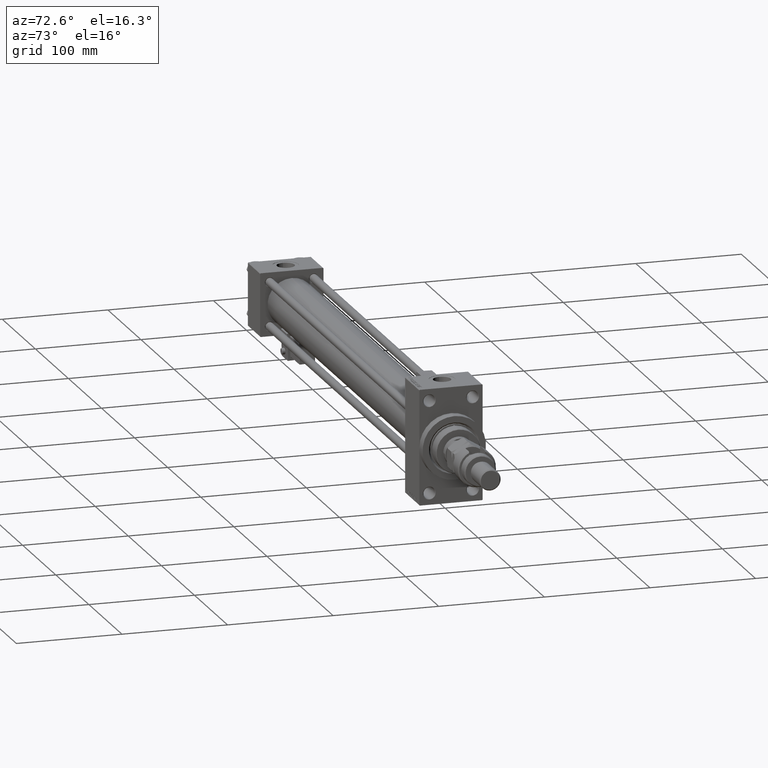
[diagram: clean part render]
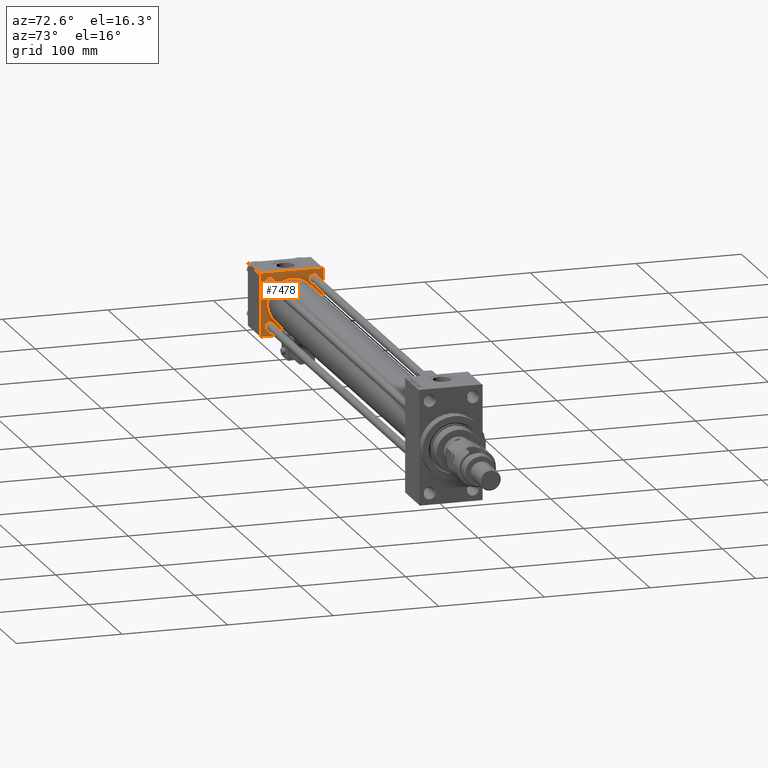
[diagram: same view with one face highlighted and labeled with its STEP entity id]
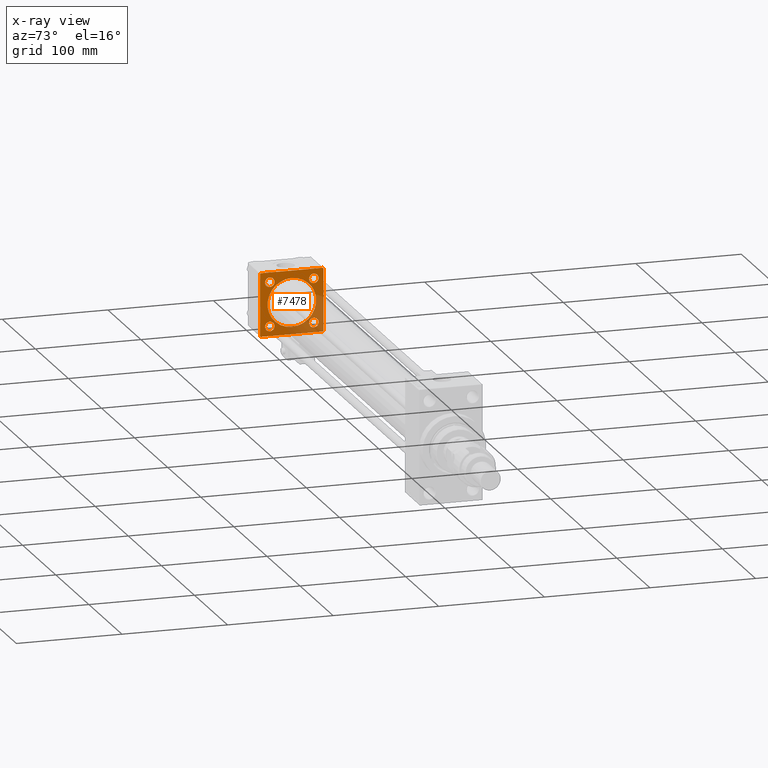
[diagram: x-ray of the same camera — body ghosted, the highlighted face saturated]
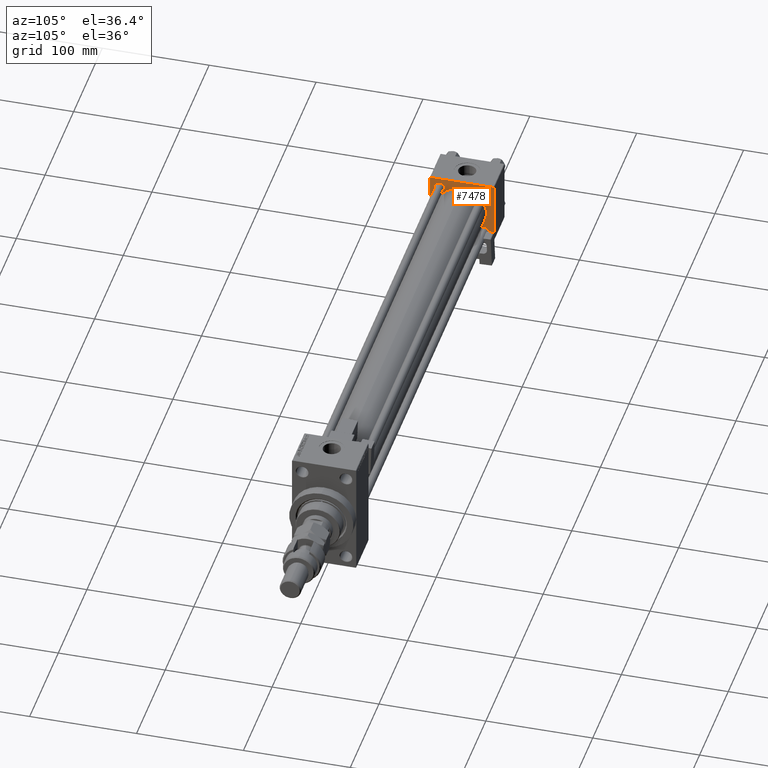
[diagram: same view with one face highlighted and labeled with its STEP entity id]
A machine part, auxiliary view. The second image highlights one B-rep face of the part: STEP entity #7478.
The next image is the same camera in x-ray: the body ghosted, the highlighted face saturated — about 28% of this face is hidden behind the body in this view.
A second angle (auxiliary view) of the same face is appended — the face is thin or edge-on in the first view.
In plain terms, the highlighted planar face has unit normal (-1, 0, 0).
Its self-contained STEP definition (entity closure, byte-faithful):
#147 = DIRECTION ( 'NONE',  ( 0.000000000000000000, 0.000000000000000000, 1.000000000000000000 ) ) ;
#328 = FACE_BOUND ( 'NONE', #32822, .T. ) ;
#1143 = DIRECTION ( 'NONE',  ( -0.000000000000000000, 0.7071067811865574537, 0.7071067811865376918 ) ) ;
#1205 = LINE ( 'NONE', #18168, #2348 ) ;
#1561 = DIRECTION ( 'NONE',  ( 0.000000000000000000, 0.000000000000000000, 1.000000000000000000 ) ) ;
#2068 = AXIS2_PLACEMENT_3D ( 'NONE', #47729, #39461, #10238 ) ;
#2106 = CIRCLE ( 'NONE', #10565, 4.500000000000059508 ) ;
#2284 = AXIS2_PLACEMENT_3D ( 'NONE', #28214, #48978, #7501 ) ;
#2348 = VECTOR ( 'NONE', #5705, 1000.000000000000114 ) ;
#2977 = VERTEX_POINT ( 'NONE', #24950 ) ;
#3003 = ORIENTED_EDGE ( 'NONE', *, *, #9560, .T. ) ;
#3104 = CARTESIAN_POINT ( 'NONE',  ( 37.00000000000000000, -30.00000000000000000, 29.99999999999999289 ) ) ;
#3221 = EDGE_CURVE ( 'NONE', #44243, #23962, #45374, .T. ) ;
#3229 = LINE ( 'NONE', #6669, #33882 ) ;
#3836 = VERTEX_POINT ( 'NONE', #33573 ) ;
#3862 = VERTEX_POINT ( 'NONE', #45813 ) ;
#4060 = PLANE ( 'NONE',  #2284 ) ;
#4586 = DIRECTION ( 'NONE',  ( 0.000000000000000000, 0.000000000000000000, 1.000000000000000000 ) ) ;
#4587 = DIRECTION ( 'NONE',  ( 0.000000000000000000, 0.000000000000000000, 1.000000000000000000 ) ) ;
#4992 = EDGE_CURVE ( 'NONE', #5384, #3862, #50861, .T. ) ;
#5384 = VERTEX_POINT ( 'NONE', #13252 ) ;
#5705 = DIRECTION ( 'NONE',  ( -0.000000000000000000, -0.7071067811865474617, -0.7071067811865474617 ) ) ;
#6182 = CARTESIAN_POINT ( 'NONE',  ( 37.00000000000000000, -20.84999999999999076, 20.85000000000000497 ) ) ;
#6669 = CARTESIAN_POINT ( 'NONE',  ( 37.00000000000000000, 29.49999999999999289, 30.00000000000000000 ) ) ;
#6893 = EDGE_CURVE ( 'NONE', #13097, #14753, #50620, .T. ) ;
#7071 = ORIENTED_EDGE ( 'NONE', *, *, #51605, .T. ) ;
#7478 = ADVANCED_FACE ( 'NONE', ( #36699, #48704, #32718, #328, #8290, #8543 ), #4060, .F. ) ;
#7501 = DIRECTION ( 'NONE',  ( -0.000000000000000000, 0.000000000000000000, 1.000000000000000000 ) ) ;
#8027 = EDGE_LOOP ( 'NONE', ( #25717, #12095, #42353, #32781, #21852, #11783, #12171, #15254 ) ) ;
#8128 = EDGE_LOOP ( 'NONE', ( #34452, #41280 ) ) ;
#8290 = FACE_BOUND ( 'NONE', #8128, .T. ) ;
#8543 = FACE_OUTER_BOUND ( 'NONE', #8027, .T. ) ;
#8678 = VERTEX_POINT ( 'NONE', #28031 ) ;
#9424 = EDGE_CURVE ( 'NONE', #31983, #9885, #18539, .T. ) ;
#9560 = EDGE_CURVE ( 'NONE', #15120, #3836, #44664, .T. ) ;
#9660 = CARTESIAN_POINT ( 'NONE',  ( 36.99999999999997868, -2.602085213965210642E-15, 0.000000000000000000 ) ) ;
#9885 = VERTEX_POINT ( 'NONE', #42797 ) ;
#10169 = VECTOR ( 'NONE', #1143, 999.9999999999998863 ) ;
#10238 = DIRECTION ( 'NONE',  ( 0.000000000000000000, 0.000000000000000000, 1.000000000000000000 ) ) ;
#10565 = AXIS2_PLACEMENT_3D ( 'NONE', #48446, #44171, #4586 ) ;
#10638 = DIRECTION ( 'NONE',  ( -1.000000000000000000, 0.000000000000000000, -0.000000000000000000 ) ) ;
#11082 = DIRECTION ( 'NONE',  ( 0.000000000000000000, 0.7071067811865474617, -0.7071067811865474617 ) ) ;
#11746 = ORIENTED_EDGE ( 'NONE', *, *, #47719, .T. ) ;
#11783 = ORIENTED_EDGE ( 'NONE', *, *, #27908, .T. ) ;
#12095 = ORIENTED_EDGE ( 'NONE', *, *, #39964, .T. ) ;
#12171 = ORIENTED_EDGE ( 'NONE', *, *, #31834, .T. ) ;
#12566 = VECTOR ( 'NONE', #51746, 1000.000000000000000 ) ;
#13097 = VERTEX_POINT ( 'NONE', #43615 ) ;
#13252 = CARTESIAN_POINT ( 'NONE',  ( 37.00000000000000000, 29.49999999999999289, 30.00000000000000000 ) ) ;
#13264 = AXIS2_PLACEMENT_3D ( 'NONE', #29915, #21690, #13451 ) ;
#13451 = DIRECTION ( 'NONE',  ( 0.000000000000000000, 0.000000000000000000, 1.000000000000000000 ) ) ;
#14368 = VECTOR ( 'NONE', #23671, 1000.000000000000000 ) ;
#14753 = VERTEX_POINT ( 'NONE', #32143 ) ;
#14786 = CARTESIAN_POINT ( 'NONE',  ( 37.00000000000000000, -20.84999999999999076, -20.85000000000000497 ) ) ;
#14941 = DIRECTION ( 'NONE',  ( 0.000000000000000000, -1.000000000000000000, -1.156482317317871725E-16 ) ) ;
#15120 = VERTEX_POINT ( 'NONE', #24641 ) ;
#15254 = ORIENTED_EDGE ( 'NONE', *, *, #9424, .T. ) ;
#15693 = ORIENTED_EDGE ( 'NONE', *, *, #35494, .T. ) ;
#16333 = EDGE_CURVE ( 'NONE', #14753, #13097, #19835, .T. ) ;
#18081 = CARTESIAN_POINT ( 'NONE',  ( 37.00000000000000000, -20.84999999999999076, -16.34999999999994458 ) ) ;
#18168 = CARTESIAN_POINT ( 'NONE',  ( 37.00000000000000000, -30.00000000000000000, 29.49999999999999289 ) ) ;
#18539 = LINE ( 'NONE', #38993, #48936 ) ;
#18873 = CARTESIAN_POINT ( 'NONE',  ( 37.00000000000000000, 29.99999999999999289, -30.00000000000000000 ) ) ;
#19412 = DIRECTION ( 'NONE',  ( 0.000000000000000000, -0.7071067811865474617, 0.7071067811865474617 ) ) ;
#19835 = CIRCLE ( 'NONE', #34269, 23.00000000000000000 ) ;
#19894 = VERTEX_POINT ( 'NONE', #32610 ) ;
#19988 = VECTOR ( 'NONE', #47187, 1000.000000000000000 ) ;
#21690 = DIRECTION ( 'NONE',  ( -1.000000000000000000, 0.000000000000000000, -0.000000000000000000 ) ) ;
#21735 = CARTESIAN_POINT ( 'NONE',  ( 36.99999999999997868, -2.602085213965210642E-15, 0.000000000000000000 ) ) ;
#21852 = ORIENTED_EDGE ( 'NONE', *, *, #4992, .T. ) ;
#21876 = DIRECTION ( 'NONE',  ( -1.000000000000000000, 0.000000000000000000, -0.000000000000000000 ) ) ;
#22586 = VERTEX_POINT ( 'NONE', #40242 ) ;
#22764 = VERTEX_POINT ( 'NONE', #30615 ) ;
#22943 = CARTESIAN_POINT ( 'NONE',  ( 37.00000000000000000, -30.00000000000000000, -29.50000000000001776 ) ) ;
#23226 = ORIENTED_EDGE ( 'NONE', *, *, #24621, .T. ) ;
#23644 = EDGE_CURVE ( 'NONE', #19894, #24120, #39449, .T. ) ;
#23671 = DIRECTION ( 'NONE',  ( 0.000000000000000000, -1.000000000000000000, -1.156482317317871725E-16 ) ) ;
#23962 = VERTEX_POINT ( 'NONE', #18081 ) ;
#24120 = VERTEX_POINT ( 'NONE', #24192 ) ;
#24192 = CARTESIAN_POINT ( 'NONE',  ( 37.00000000000000000, 29.99999999999999289, -29.50000000000000000 ) ) ;
#24621 = EDGE_CURVE ( 'NONE', #23962, #44243, #25107, .T. ) ;
#24641 = CARTESIAN_POINT ( 'NONE',  ( 37.00000000000000000, 20.84999999999999787, -25.35000000000005826 ) ) ;
#24773 = CARTESIAN_POINT ( 'NONE',  ( 37.00000000000000000, 20.84999999999999787, 20.85000000000000142 ) ) ;
#24950 = CARTESIAN_POINT ( 'NONE',  ( 37.00000000000000000, 29.49999999999997868, -30.00000000000000000 ) ) ;
#25107 = CIRCLE ( 'NONE', #49755, 4.500000000000059508 ) ;
#25717 = ORIENTED_EDGE ( 'NONE', *, *, #34671, .F. ) ;
#25881 = DIRECTION ( 'NONE',  ( 0.000000000000000000, 0.000000000000000000, 1.000000000000000000 ) ) ;
#25974 = AXIS2_PLACEMENT_3D ( 'NONE', #21735, #37933, #1561 ) ;
#27908 = EDGE_CURVE ( 'NONE', #3862, #36674, #1205, .T. ) ;
#28031 = CARTESIAN_POINT ( 'NONE',  ( 37.00000000000000000, -20.84999999999999076, 25.35000000000006182 ) ) ;
#28214 = CARTESIAN_POINT ( 'NONE',  ( 37.00000000000000000, 0.000000000000000000, 0.000000000000000000 ) ) ;
#28564 = DIRECTION ( 'NONE',  ( -1.000000000000000000, 0.000000000000000000, -0.000000000000000000 ) ) ;
#29582 = DIRECTION ( 'NONE',  ( 0.000000000000000000, 0.000000000000000000, 1.000000000000000000 ) ) ;
#29915 = CARTESIAN_POINT ( 'NONE',  ( 37.00000000000000000, 20.84999999999999787, -20.85000000000000142 ) ) ;
#30615 = CARTESIAN_POINT ( 'NONE',  ( 37.00000000000000000, 20.84999999999999787, 16.34999999999994102 ) ) ;
#30888 = CARTESIAN_POINT ( 'NONE',  ( 37.00000000000000000, 29.99999999999999289, 30.00000000000000000 ) ) ;
#31474 = CARTESIAN_POINT ( 'NONE',  ( 37.00000000000000000, 29.99999999999999289, 30.00000000000000000 ) ) ;
#31768 = AXIS2_PLACEMENT_3D ( 'NONE', #14786, #51766, #42704 ) ;
#31834 = EDGE_CURVE ( 'NONE', #36674, #31983, #39477, .T. ) ;
#31983 = VERTEX_POINT ( 'NONE', #22943 ) ;
#32029 = CARTESIAN_POINT ( 'NONE',  ( 37.00000000000000000, -20.84999999999999076, -25.35000000000006182 ) ) ;
#32143 = CARTESIAN_POINT ( 'NONE',  ( 36.99999999999997868, -2.602085213965210642E-15, 23.00000000000000000 ) ) ;
#32610 = CARTESIAN_POINT ( 'NONE',  ( 37.00000000000000000, 29.99999999999999289, 29.50000000000000000 ) ) ;
#32718 = FACE_BOUND ( 'NONE', #33770, .T. ) ;
#32781 = ORIENTED_EDGE ( 'NONE', *, *, #34627, .T. ) ;
#32822 = EDGE_LOOP ( 'NONE', ( #50892, #34973 ) ) ;
#33321 = CARTESIAN_POINT ( 'NONE',  ( 37.00000000000000000, -20.84999999999999076, -20.85000000000000497 ) ) ;
#33573 = CARTESIAN_POINT ( 'NONE',  ( 37.00000000000000000, 20.84999999999999787, -16.34999999999994102 ) ) ;
#33770 = EDGE_LOOP ( 'NONE', ( #11746, #7071 ) ) ;
#33882 = VECTOR ( 'NONE', #19412, 1000.000000000000114 ) ;
#34269 = AXIS2_PLACEMENT_3D ( 'NONE', #9660, #45831, #25881 ) ;
#34452 = ORIENTED_EDGE ( 'NONE', *, *, #16333, .F. ) ;
#34627 = EDGE_CURVE ( 'NONE', #19894, #5384, #3229, .T. ) ;
#34671 = EDGE_CURVE ( 'NONE', #2977, #9885, #51603, .T. ) ;
#34973 = ORIENTED_EDGE ( 'NONE', *, *, #47618, .T. ) ;
#35240 = CARTESIAN_POINT ( 'NONE',  ( 37.00000000000000000, 20.84999999999999787, 25.35000000000005826 ) ) ;
#35494 = EDGE_CURVE ( 'NONE', #3836, #15120, #44236, .T. ) ;
#36674 = VERTEX_POINT ( 'NONE', #42550 ) ;
#36699 = FACE_BOUND ( 'NONE', #38048, .T. ) ;
#37780 = CARTESIAN_POINT ( 'NONE',  ( 37.00000000000000000, 29.99999999999999289, -29.50000000000000000 ) ) ;
#37933 = DIRECTION ( 'NONE',  ( 1.000000000000000000, -0.000000000000000000, 0.000000000000000000 ) ) ;
#38048 = EDGE_LOOP ( 'NONE', ( #42050, #23226 ) ) ;
#38097 = VERTEX_POINT ( 'NONE', #35240 ) ;
#38993 = CARTESIAN_POINT ( 'NONE',  ( 37.00000000000000000, -29.50000000000001066, -30.00000000000000711 ) ) ;
#39117 = AXIS2_PLACEMENT_3D ( 'NONE', #47073, #10638, #43324 ) ;
#39449 = LINE ( 'NONE', #31474, #19988 ) ;
#39461 = DIRECTION ( 'NONE',  ( -1.000000000000000000, 0.000000000000000000, -0.000000000000000000 ) ) ;
#39477 = LINE ( 'NONE', #3104, #12566 ) ;
#39964 = EDGE_CURVE ( 'NONE', #2977, #24120, #45519, .T. ) ;
#40242 = CARTESIAN_POINT ( 'NONE',  ( 37.00000000000000000, -20.84999999999999076, 16.34999999999994458 ) ) ;
#40966 = DIRECTION ( 'NONE',  ( -1.000000000000000000, 0.000000000000000000, -0.000000000000000000 ) ) ;
#41280 = ORIENTED_EDGE ( 'NONE', *, *, #6893, .F. ) ;
#41802 = CIRCLE ( 'NONE', #46065, 4.500000000000059508 ) ;
#42050 = ORIENTED_EDGE ( 'NONE', *, *, #3221, .T. ) ;
#42353 = ORIENTED_EDGE ( 'NONE', *, *, #23644, .F. ) ;
#42550 = CARTESIAN_POINT ( 'NONE',  ( 37.00000000000000000, -30.00000000000000000, 29.49999999999999289 ) ) ;
#42704 = DIRECTION ( 'NONE',  ( 0.000000000000000000, 0.000000000000000000, 1.000000000000000000 ) ) ;
#42797 = CARTESIAN_POINT ( 'NONE',  ( 37.00000000000000000, -29.50000000000000000, -30.00000000000000711 ) ) ;
#43324 = DIRECTION ( 'NONE',  ( 0.000000000000000000, 0.000000000000000000, 1.000000000000000000 ) ) ;
#43615 = CARTESIAN_POINT ( 'NONE',  ( 36.99999999999997868, 2.146024240737016609E-16, -23.00000000000000000 ) ) ;
#43625 = CIRCLE ( 'NONE', #2068, 4.500000000000059508 ) ;
#44171 = DIRECTION ( 'NONE',  ( -1.000000000000000000, 0.000000000000000000, -0.000000000000000000 ) ) ;
#44236 = CIRCLE ( 'NONE', #39117, 4.500000000000059508 ) ;
#44243 = VERTEX_POINT ( 'NONE', #32029 ) ;
#44664 = CIRCLE ( 'NONE', #13264, 4.500000000000059508 ) ;
#45374 = CIRCLE ( 'NONE', #31768, 4.500000000000059508 ) ;
#45519 = LINE ( 'NONE', #37780, #10169 ) ;
#45813 = CARTESIAN_POINT ( 'NONE',  ( 37.00000000000000000, -29.49999999999998579, 29.99999999999999289 ) ) ;
#45831 = DIRECTION ( 'NONE',  ( 1.000000000000000000, -0.000000000000000000, 0.000000000000000000 ) ) ;
#46065 = AXIS2_PLACEMENT_3D ( 'NONE', #6182, #21876, #29582 ) ;
#46317 = EDGE_LOOP ( 'NONE', ( #3003, #15693 ) ) ;
#46861 = CIRCLE ( 'NONE', #51117, 4.500000000000059508 ) ;
#47073 = CARTESIAN_POINT ( 'NONE',  ( 37.00000000000000000, 20.84999999999999787, -20.85000000000000142 ) ) ;
#47187 = DIRECTION ( 'NONE',  ( 0.000000000000000000, 0.000000000000000000, -1.000000000000000000 ) ) ;
#47618 = EDGE_CURVE ( 'NONE', #38097, #22764, #46861, .T. ) ;
#47719 = EDGE_CURVE ( 'NONE', #22586, #8678, #41802, .T. ) ;
#47729 = CARTESIAN_POINT ( 'NONE',  ( 37.00000000000000000, 20.84999999999999787, 20.85000000000000142 ) ) ;
#48446 = CARTESIAN_POINT ( 'NONE',  ( 37.00000000000000000, -20.84999999999999076, 20.85000000000000497 ) ) ;
#48704 = FACE_BOUND ( 'NONE', #46317, .T. ) ;
#48936 = VECTOR ( 'NONE', #11082, 1000.000000000000114 ) ;
#48978 = DIRECTION ( 'NONE',  ( -1.000000000000000000, 0.000000000000000000, -0.000000000000000000 ) ) ;
#49755 = AXIS2_PLACEMENT_3D ( 'NONE', #33321, #28564, #147 ) ;
#50620 = CIRCLE ( 'NONE', #25974, 23.00000000000000000 ) ;
#50861 = LINE ( 'NONE', #30888, #51383 ) ;
#50892 = ORIENTED_EDGE ( 'NONE', *, *, #51087, .T. ) ;
#51087 = EDGE_CURVE ( 'NONE', #22764, #38097, #43625, .T. ) ;
#51117 = AXIS2_PLACEMENT_3D ( 'NONE', #24773, #40966, #4587 ) ;
#51383 = VECTOR ( 'NONE', #14941, 1000.000000000000000 ) ;
#51603 = LINE ( 'NONE', #18873, #14368 ) ;
#51605 = EDGE_CURVE ( 'NONE', #8678, #22586, #2106, .T. ) ;
#51746 = DIRECTION ( 'NONE',  ( 0.000000000000000000, 0.000000000000000000, -1.000000000000000000 ) ) ;
#51766 = DIRECTION ( 'NONE',  ( -1.000000000000000000, 0.000000000000000000, -0.000000000000000000 ) ) ;